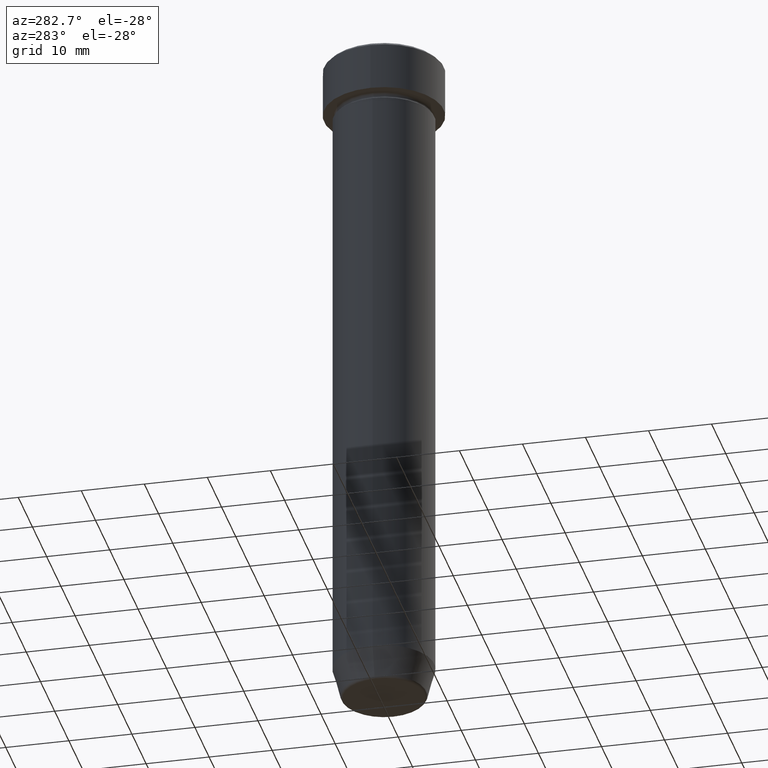
[diagram: clean part render]
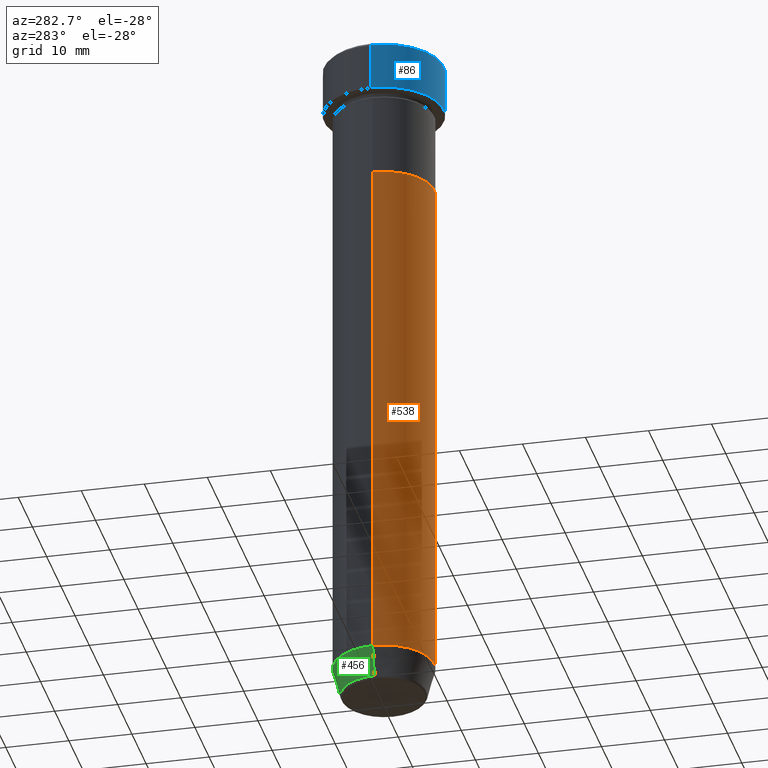
[diagram: same view with three faces highlighted in distinct colors, each labeled with its STEP entity id]
A machine part, auxiliary view with three faces highlighted in distinct colors.
Their STEP definitions:

[orange] entity #538 — the highlighted cylindrical surface (partial cylindrical patch) has radius 8 mm, axis along (-0, -0, 1).
#2 = EDGE_CURVE ( 'NONE', #389, #199, #178, .T. ) ;
#12 = VERTEX_POINT ( 'NONE', #581 ) ;
#20 = ORIENTED_EDGE ( 'NONE', *, *, #449, .F. ) ;
#24 = VECTOR ( 'NONE', #391, 1000.000000000000000 ) ;
#53 = VERTEX_POINT ( 'NONE', #300 ) ;
#63 = DIRECTION ( 'NONE',  ( -0.000000000000000000, -0.000000000000000000, 1.000000000000000000 ) ) ;
#68 = LINE ( 'NONE', #166, #242 ) ;
#74 = AXIS2_PLACEMENT_3D ( 'NONE', #565, #63, #298 ) ;
#102 = ORIENTED_EDGE ( 'NONE', *, *, #561, .T. ) ;
#112 = CARTESIAN_POINT ( 'NONE',  ( 0.000000000000000000, 0.000000000000000000, -22.00000000000000000 ) ) ;
#116 = ORIENTED_EDGE ( 'NONE', *, *, #433, .T. ) ;
#128 = CARTESIAN_POINT ( 'NONE',  ( 0.000000000000000000, 0.000000000000000000, -104.9999999999999858 ) ) ;
#156 = DIRECTION ( 'NONE',  ( -0.000000000000000000, -0.000000000000000000, 1.000000000000000000 ) ) ;
#166 = CARTESIAN_POINT ( 'NONE',  ( 8.000000000000000000, 0.000000000000000000, 0.000000000000000000 ) ) ;
#178 = LINE ( 'NONE', #541, #24 ) ;
#185 = CARTESIAN_POINT ( 'NONE',  ( -8.000000000000000000, 9.797174393178825657E-16, -22.00000000000000000 ) ) ;
#199 = VERTEX_POINT ( 'NONE', #185 ) ;
#242 = VECTOR ( 'NONE', #526, 1000.000000000000000 ) ;
#261 = AXIS2_PLACEMENT_3D ( 'NONE', #128, #156, #353 ) ;
#281 = AXIS2_PLACEMENT_3D ( 'NONE', #112, #335, #483 ) ;
#290 = CYLINDRICAL_SURFACE ( 'NONE', #74, 8.000000000000000000 ) ;
#297 = EDGE_LOOP ( 'NONE', ( #510, #102, #116, #20 ) ) ;
#298 = DIRECTION ( 'NONE',  ( 1.000000000000000000, 0.000000000000000000, 0.000000000000000000 ) ) ;
#300 = CARTESIAN_POINT ( 'NONE',  ( 8.000000000000000000, 0.000000000000000000, -104.9999999999999858 ) ) ;
#335 = DIRECTION ( 'NONE',  ( -0.000000000000000000, -0.000000000000000000, 1.000000000000000000 ) ) ;
#353 = DIRECTION ( 'NONE',  ( 1.000000000000000000, 0.000000000000000000, 0.000000000000000000 ) ) ;
#357 = CARTESIAN_POINT ( 'NONE',  ( -8.000000000000000000, 9.797174393178825657E-16, -104.9999999999999858 ) ) ;
#382 = FACE_OUTER_BOUND ( 'NONE', #297, .T. ) ;
#389 = VERTEX_POINT ( 'NONE', #357 ) ;
#391 = DIRECTION ( 'NONE',  ( -0.000000000000000000, -0.000000000000000000, 1.000000000000000000 ) ) ;
#433 = EDGE_CURVE ( 'NONE', #53, #12, #68, .T. ) ;
#449 = EDGE_CURVE ( 'NONE', #199, #12, #488, .T. ) ;
#483 = DIRECTION ( 'NONE',  ( 1.000000000000000000, 0.000000000000000000, 0.000000000000000000 ) ) ;
#488 = CIRCLE ( 'NONE', #281, 8.000000000000000000 ) ;
#510 = ORIENTED_EDGE ( 'NONE', *, *, #2, .F. ) ;
#526 = DIRECTION ( 'NONE',  ( -0.000000000000000000, -0.000000000000000000, 1.000000000000000000 ) ) ;
#538 = ADVANCED_FACE ( 'NONE', ( #382 ), #290, .T. ) ;
#541 = CARTESIAN_POINT ( 'NONE',  ( -8.000000000000000000, 9.797174393178825657E-16, 0.000000000000000000 ) ) ;
#545 = CIRCLE ( 'NONE', #261, 8.000000000000000000 ) ;
#561 = EDGE_CURVE ( 'NONE', #389, #53, #545, .T. ) ;
#565 = CARTESIAN_POINT ( 'NONE',  ( 0.000000000000000000, 0.000000000000000000, 0.000000000000000000 ) ) ;
#581 = CARTESIAN_POINT ( 'NONE',  ( 8.000000000000000000, 0.000000000000000000, -22.00000000000000000 ) ) ;

[blue] entity #86 — the highlighted cylindrical surface (partial cylindrical patch) has radius 9.5 mm, axis along (-0, -0, 1).
#27 = CARTESIAN_POINT ( 'NONE',  ( 9.500000000000000000, 0.000000000000000000, -0.4999999999999968914 ) ) ;
#30 = VERTEX_POINT ( 'NONE', #27 ) ;
#46 = AXIS2_PLACEMENT_3D ( 'NONE', #598, #504, #275 ) ;
#49 = DIRECTION ( 'NONE',  ( -0.000000000000000000, -0.000000000000000000, 1.000000000000000000 ) ) ;
#86 = ADVANCED_FACE ( 'NONE', ( #217 ), #487, .T. ) ;
#88 = DIRECTION ( 'NONE',  ( -0.000000000000000000, -0.000000000000000000, 1.000000000000000000 ) ) ;
#90 = CARTESIAN_POINT ( 'NONE',  ( 9.500000000000000000, 0.000000000000000000, -8.000000000000000000 ) ) ;
#113 = AXIS2_PLACEMENT_3D ( 'NONE', #352, #577, #539 ) ;
#120 = EDGE_LOOP ( 'NONE', ( #473, #294, #289, #480 ) ) ;
#161 = CARTESIAN_POINT ( 'NONE',  ( -9.500000000000000000, 1.163414459189985485E-15, -8.000000000000000000 ) ) ;
#172 = EDGE_CURVE ( 'NONE', #30, #387, #562, .T. ) ;
#182 = CARTESIAN_POINT ( 'NONE',  ( -9.500000000000000000, 1.163414459189985485E-15, 0.000000000000000000 ) ) ;
#183 = CARTESIAN_POINT ( 'NONE',  ( -9.500000000000000000, 1.163414459189985485E-15, -0.4999999999999968914 ) ) ;
#186 = DIRECTION ( 'NONE',  ( 1.000000000000000000, 0.000000000000000000, 0.000000000000000000 ) ) ;
#187 = EDGE_CURVE ( 'NONE', #427, #387, #547, .T. ) ;
#202 = CIRCLE ( 'NONE', #369, 9.500000000000000000 ) ;
#203 = EDGE_CURVE ( 'NONE', #207, #30, #500, .T. ) ;
#207 = VERTEX_POINT ( 'NONE', #90 ) ;
#217 = FACE_OUTER_BOUND ( 'NONE', #120, .T. ) ;
#221 = VECTOR ( 'NONE', #356, 1000.000000000000000 ) ;
#275 = DIRECTION ( 'NONE',  ( 1.000000000000000000, 0.000000000000000000, 0.000000000000000000 ) ) ;
#282 = CARTESIAN_POINT ( 'NONE',  ( 0.000000000000000000, 0.000000000000000000, -8.000000000000000000 ) ) ;
#289 = ORIENTED_EDGE ( 'NONE', *, *, #203, .T. ) ;
#294 = ORIENTED_EDGE ( 'NONE', *, *, #416, .T. ) ;
#352 = CARTESIAN_POINT ( 'NONE',  ( 0.000000000000000000, 0.000000000000000000, 0.000000000000000000 ) ) ;
#356 = DIRECTION ( 'NONE',  ( -0.000000000000000000, -0.000000000000000000, 1.000000000000000000 ) ) ;
#361 = CARTESIAN_POINT ( 'NONE',  ( 9.500000000000000000, 0.000000000000000000, 0.000000000000000000 ) ) ;
#369 = AXIS2_PLACEMENT_3D ( 'NONE', #282, #49, #186 ) ;
#387 = VERTEX_POINT ( 'NONE', #183 ) ;
#416 = EDGE_CURVE ( 'NONE', #427, #207, #202, .T. ) ;
#427 = VERTEX_POINT ( 'NONE', #161 ) ;
#473 = ORIENTED_EDGE ( 'NONE', *, *, #187, .F. ) ;
#480 = ORIENTED_EDGE ( 'NONE', *, *, #172, .T. ) ;
#487 = CYLINDRICAL_SURFACE ( 'NONE', #113, 9.500000000000000000 ) ;
#500 = LINE ( 'NONE', #361, #580 ) ;
#504 = DIRECTION ( 'NONE',  ( 0.000000000000000000, 0.000000000000000000, -1.000000000000000000 ) ) ;
#539 = DIRECTION ( 'NONE',  ( 1.000000000000000000, 0.000000000000000000, 0.000000000000000000 ) ) ;
#547 = LINE ( 'NONE', #182, #221 ) ;
#562 = CIRCLE ( 'NONE', #46, 9.500000000000000000 ) ;
#577 = DIRECTION ( 'NONE',  ( -0.000000000000000000, -0.000000000000000000, 1.000000000000000000 ) ) ;
#580 = VECTOR ( 'NONE', #88, 1000.000000000000000 ) ;
#598 = CARTESIAN_POINT ( 'NONE',  ( 0.000000000000000000, 0.000000000000000000, -0.4999999999999968914 ) ) ;

[green] entity #456 — the highlighted conical surface has half-angle 15 deg.
#6 = AXIS2_PLACEMENT_3D ( 'NONE', #332, #390, #245 ) ;
#18 = ORIENTED_EDGE ( 'NONE', *, *, #94, .F. ) ;
#53 = VERTEX_POINT ( 'NONE', #300 ) ;
#61 = EDGE_CURVE ( 'NONE', #155, #328, #192, .T. ) ;
#76 = CARTESIAN_POINT ( 'NONE',  ( 6.660254037844381081, 0.000000000000000000, -109.9999999999999858 ) ) ;
#91 = DIRECTION ( 'NONE',  ( -0.000000000000000000, -0.000000000000000000, 1.000000000000000000 ) ) ;
#94 = EDGE_CURVE ( 'NONE', #155, #53, #129, .T. ) ;
#99 = CARTESIAN_POINT ( 'NONE',  ( -6.660254037844381081, 8.156458788954356817E-16, -109.9999999999999858 ) ) ;
#104 = VECTOR ( 'NONE', #307, 1000.000000000000114 ) ;
#129 = LINE ( 'NONE', #76, #104 ) ;
#133 = AXIS2_PLACEMENT_3D ( 'NONE', #491, #216, #264 ) ;
#150 = DIRECTION ( 'NONE',  ( 1.000000000000000000, 0.000000000000000000, 0.000000000000000000 ) ) ;
#155 = VERTEX_POINT ( 'NONE', #495 ) ;
#168 = AXIS2_PLACEMENT_3D ( 'NONE', #556, #91, #150 ) ;
#192 = CIRCLE ( 'NONE', #133, 6.759553456999436882 ) ;
#193 = CARTESIAN_POINT ( 'NONE',  ( -6.759553456999437770, 9.037619948979306213E-16, -109.6294095225512564 ) ) ;
#196 = EDGE_LOOP ( 'NONE', ( #256, #262, #250, #18 ) ) ;
#216 = DIRECTION ( 'NONE',  ( -0.000000000000000000, -0.000000000000000000, 1.000000000000000000 ) ) ;
#245 = DIRECTION ( 'NONE',  ( 1.000000000000000000, 0.000000000000000000, 0.000000000000000000 ) ) ;
#250 = ORIENTED_EDGE ( 'NONE', *, *, #347, .F. ) ;
#256 = ORIENTED_EDGE ( 'NONE', *, *, #61, .T. ) ;
#262 = ORIENTED_EDGE ( 'NONE', *, *, #284, .T. ) ;
#264 = DIRECTION ( 'NONE',  ( -1.000000000000000000, 0.000000000000000000, 0.000000000000000000 ) ) ;
#283 = LINE ( 'NONE', #99, #571 ) ;
#284 = EDGE_CURVE ( 'NONE', #328, #389, #283, .T. ) ;
#287 = CONICAL_SURFACE ( 'NONE', #6, 6.660254037844381081, 0.2617993877991502405 ) ;
#300 = CARTESIAN_POINT ( 'NONE',  ( 8.000000000000000000, 0.000000000000000000, -104.9999999999999858 ) ) ;
#307 = DIRECTION ( 'NONE',  ( 0.2588190451025214611, 0.000000000000000000, 0.9659258262890679791 ) ) ;
#328 = VERTEX_POINT ( 'NONE', #193 ) ;
#330 = CIRCLE ( 'NONE', #168, 8.000000000000000000 ) ;
#332 = CARTESIAN_POINT ( 'NONE',  ( 0.000000000000000000, 0.000000000000000000, -109.9999999999999858 ) ) ;
#347 = EDGE_CURVE ( 'NONE', #53, #389, #330, .T. ) ;
#357 = CARTESIAN_POINT ( 'NONE',  ( -8.000000000000000000, 9.797174393178825657E-16, -104.9999999999999858 ) ) ;
#363 = DIRECTION ( 'NONE',  ( -0.2588190451025214611, 3.169619151431774186E-17, 0.9659258262890679791 ) ) ;
#389 = VERTEX_POINT ( 'NONE', #357 ) ;
#390 = DIRECTION ( 'NONE',  ( -0.000000000000000000, -0.000000000000000000, 1.000000000000000000 ) ) ;
#456 = ADVANCED_FACE ( 'NONE', ( #481 ), #287, .T. ) ;
#481 = FACE_OUTER_BOUND ( 'NONE', #196, .T. ) ;
#491 = CARTESIAN_POINT ( 'NONE',  ( 0.000000000000000000, 0.000000000000000000, -109.6294095225512564 ) ) ;
#495 = CARTESIAN_POINT ( 'NONE',  ( 6.759553456999437770, 0.000000000000000000, -109.6294095225512564 ) ) ;
#556 = CARTESIAN_POINT ( 'NONE',  ( 0.000000000000000000, 0.000000000000000000, -104.9999999999999858 ) ) ;
#571 = VECTOR ( 'NONE', #363, 1000.000000000000114 ) ;